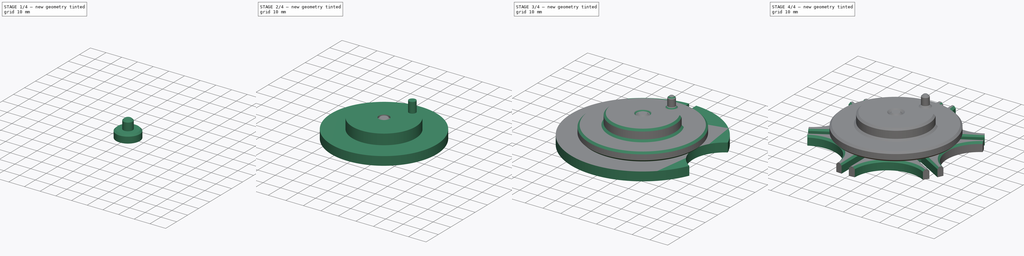
[diagram: build sequence overview — one tinted view per stage of 4, left to right]
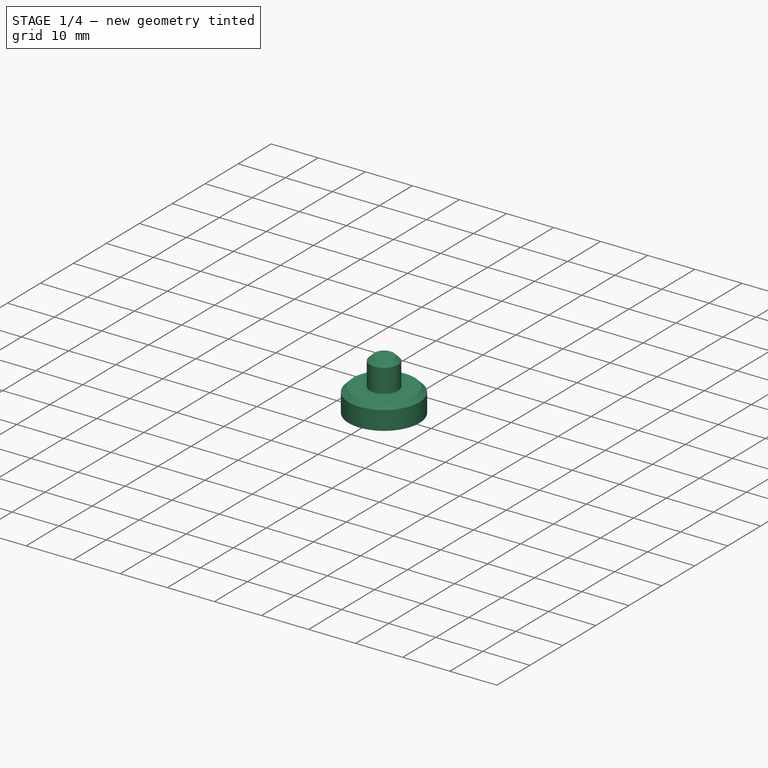
[diagram: stage 1 of 4 — iso view after this stage's code; geometry added in this stage tinted green]
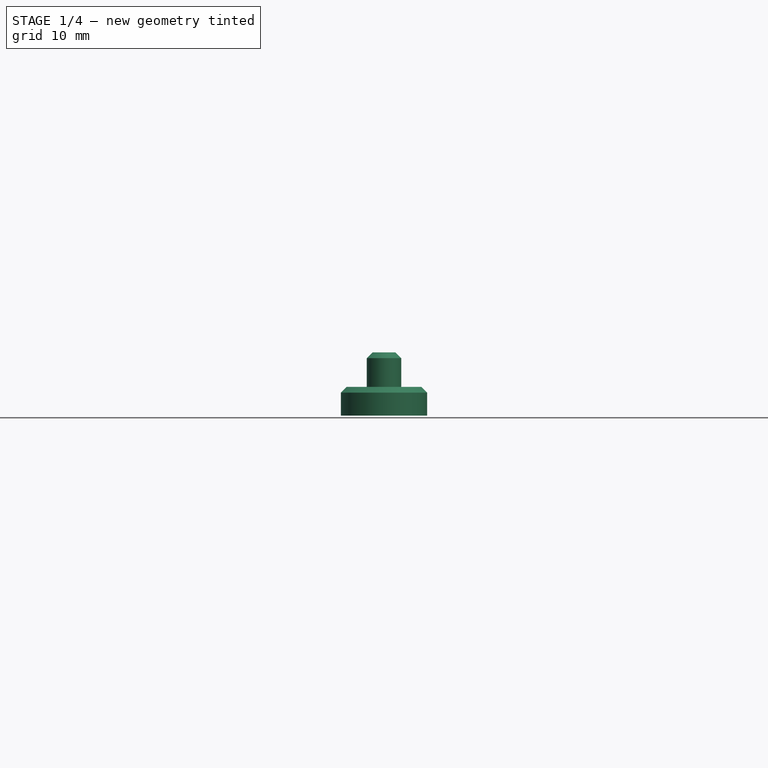
[diagram: stage 1 of 4 — front view after this stage's code; geometry added in this stage tinted green]
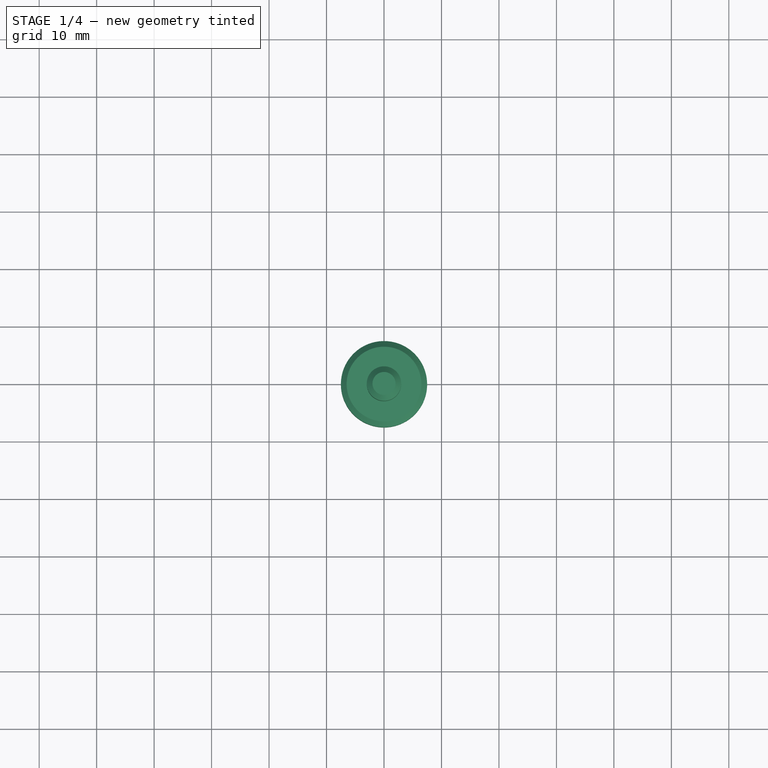
[diagram: stage 1 of 4 — top view after this stage's code; geometry added in this stage tinted green]
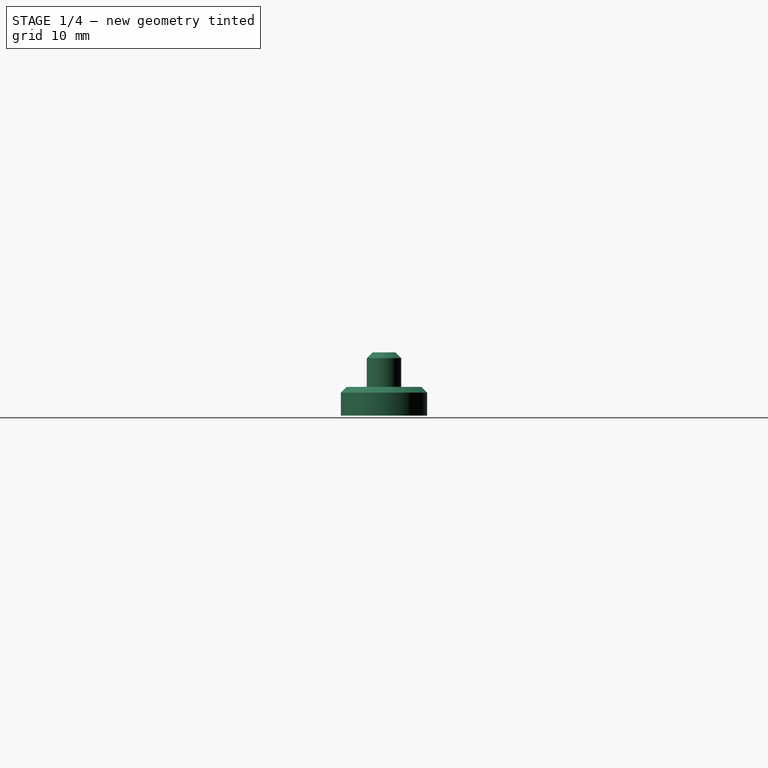
[diagram: stage 1 of 4 — right view after this stage's code; geometry added in this stage tinted green]
FCSTD DOCUMENT  (FreeCAD 0.20R29177 +426 (Git))
Label: project_14
License: All rights reserved
LicenseURL: https://en.wikipedia.org/wiki/All_rights_reserved
objects: Sketcher::SketchObject×9, PartDesign::CoordinateSystem×7, PartDesign::Pad×5, PartDesign::Chamfer×5, PartDesign::Body×4, App::Link×4, PartDesign::Pocket×3, App::DocumentObjectGroup×3, PartDesign::PolarPattern×1, App::FeaturePython×1, App::Part×1
note: 47 computed .brp shape members not serialized (recipe doc carries the construction recipe); baked Part::Feature solids carry a one-line shape summary decoded from their .brp

FEATURE [PartDesign::CoordinateSystem] LCS_Origin
  AttacherType = Attacher::AttachEngine3D
  MapMode = 2
  Support = -> [X_Axis002]
FEATURE [App::DocumentObjectGroup] Constraints
FEATURE [App::FeaturePython] Variables  # WARN: FeaturePython — macro-defined, semantics opaque (R4)
  Type = App::PropertyContainer
  rotator = 120
FEATURE [App::DocumentObjectGroup] Configurations
FEATURE [PartDesign::CoordinateSystem] wheel_1
  AttacherType = Attacher::AttachEngine3D
  AttachmentOffset = pos=(0,0,0) rot=(0,0,1;0.523599rad)
  MapMode = 11
  Placement = pos=(0,0,-5) rot=(0,0,1;3.14159rad)
  Support = -> [Chamfer001]
FEATURE [PartDesign::Body] Body  label="Wheel"
  Group = -> [Sketch,Pad,Sketch001,Pocket,PolarPattern,Sketch002,Pocket001,Chamfer,Chamfer001,wheel_1]
  Origin = -> Origin
  Tip = -> Chamfer001
FEATURE [PartDesign::CoordinateSystem] disk_1
  AttacherType = Attacher::AttachEngine3D
  MapMode = 11
  Placement = pos=(0,0,1) rot=(0,0,1;1.5708rad)
  Support = -> [Chamfer002]
FEATURE [PartDesign::Body] Body001  label="Disk"
  Group = -> [Sketch003,Pad001,Sketch004,Pad002,Sketch005,Pocket002,Chamfer002,disk_1]
  Origin = -> Origin001
  Tip = -> Chamfer002
FEATURE [PartDesign::CoordinateSystem] LCS_Origin001
  AttacherType = Attacher::AttachEngine3D
  MapMode = 2
  Support = -> [X_Axis003]
FEATURE [Sketcher::SketchObject] center_w_s
  FullyConstrained = true
  Support = -> [LCS_Origin001]
  sketch-geometry (1):
    g0: Circle CenterX=0 CenterY=0 CenterZ=0 NormalX=0 NormalY=0 NormalZ=1 AngleXU=0 Radius=7.5
  constraints (2):
    c: Coincident(g0,g-1)
    c: Diameter(g0) = 15
FEATURE [PartDesign::Pad] Pad003
  Direction = (0,0,1)
  Length = 5
  Length2 = 10
  Profile = -> center_w_s
  ReferenceAxis = -> center_w_s [N_Axis]
  Refine = true
  Type = 0
FEATURE [PartDesign::Chamfer] Chamfer003
  Angle = 45
  Base = -> Pad003 [Edge3]
  BaseFeature = -> Pad003
  ChamferType = 0
  FlipDirection = false
  Refine = true
  Size = 1
  Size2 = 1
  SupportTransform = false
  UseAllEdges = false
FEATURE [PartDesign::Body] center_w
  Group = -> [LCS_Origin001,center_w_s,Pad003,Chamfer003]
  Origin = -> Origin003
  Tip = -> Chamfer003
FEATURE [Sketcher::SketchObject] master
  FullyConstrained = true
  Support = -> [LCS_Origin]
  expr: Constraints[5] = Variables.rotator > 240 ? -30 : (Variables.rotator > 120 ? atan(23.094 * sin(180 - Variables.rotator) / (46.188 - 23.094 * cos(180 - Variables.rotator))) : 30)
  expr: Constraints[6] = Variables.rotator
  sketch-geometry (2):
    g0: LineSegment StartX=-46.188 StartY=0 StartZ=0 EndX=-11.547 EndY=20 EndZ=0
    g1: LineSegment StartX=0 StartY=0 StartZ=0 EndX=-11.547 EndY=20 EndZ=0
  constraints (7):
    c: PointOnObject(g0,g-1)
    c: Distance(g0) = 40
    c: DistanceX(g0,g-1) = 46.188
    c: Coincident(g1,g-1)
    c: Distance(g1) = 23.094
    c: Angle(g-1,g0) = 0.523599
    c: Angle(g-1,g1) = 2.0944
FEATURE [PartDesign::CoordinateSystem] wheel_lcs
  AttacherType = Attacher::AttachEngine3D
  MapMode = 7
  Placement = pos=(-46.188,0,0) rot=(0.774597,-0.447214,-0.447214;1.82348rad)
  Support = -> [master]
FEATURE [PartDesign::CoordinateSystem] disk_lcs
  AttacherType = Attacher::AttachEngine3D
  MapMode = 7
  Placement = pos=(0,0,0) rot=(0.935113,0.250563,0.250563;1.63783rad)
  Support = -> [master]
FEATURE [App::Link] Wheel  label="Wheel001"
  AttachedBy = #wheel_1
  AttachedTo = Parent Assembly#wheel_lcs
  AttachmentOffset = pos=(0,0,0) rot=(1,0,0;4.71239rad)
  LinkPlacement = pos=(-46.188,0,5) rot=(0,0,1;2.0944rad)
  LinkedObject = -> Body
  Placement = pos=(-46.188,0,5) rot=(0,0,1;2.0944rad)
  SolverId = Asm4EE
  expr: Placement = wheel_lcs.Placement * AttachmentOffset * wheel_1.Placement ^ -1
FEATURE [App::Link] Disk  label="Disk001"
  AttachedBy = #disk_1
  AttachedTo = Parent Assembly#disk_lcs
  AttachmentOffset = pos=(0,-5,0) rot=(0.57735,-0.57735,-0.57735;4.18879rad)
  LinkPlacement = pos=(3e-16,-8e-16,-6) rot=(0,0,-1;5.75959rad)
  LinkedObject = -> Body001
  Placement = pos=(3e-16,-8e-16,-6) rot=(0,0,-1;5.75959rad)
  SolverId = Asm4EE
  expr: Placement = disk_lcs.Placement * AttachmentOffset * disk_1.Placement ^ -1
FEATURE [App::Link] center_w001
  AttachedBy = #LCS_Origin001
  AttachedTo = Parent Assembly#wheel_lcs
  AttachmentOffset = pos=(0,0,0) rot=(1,0,0;4.71239rad)
  LinkPlacement = pos=(-46.188,0,0) rot=(0,0,1;5.23599rad)
  LinkedObject = -> center_w
  Placement = pos=(-46.188,0,0) rot=(0,0,1;5.23599rad)
  SolverId = Asm4EE
  expr: Placement = wheel_lcs.Placement * AttachmentOffset * LCS_Origin001.Placement ^ -1
FEATURE [PartDesign::CoordinateSystem] LCS_Origin002
  AttacherType = Attacher::AttachEngine3D
  MapMode = 2
  Support = -> [X_Axis004]
FEATURE [Sketcher::SketchObject] center_d_sketch
  FullyConstrained = true
  MapMode = 5
  Support = -> [LCS_Origin002]
  sketch-geometry (1):
    g0: Circle CenterX=0 CenterY=0 CenterZ=0 NormalX=0 NormalY=0 NormalZ=1 AngleXU=0 Radius=3
  constraints (2):
    c: Coincident(g0,g-1)
    c: Diameter(g0) = 6
FEATURE [PartDesign::Pad] Pad004
  Direction = (0,0,1)
  Length = 11
  Length2 = 10
  Profile = -> center_d_sketch
  ReferenceAxis = -> center_d_sketch [N_Axis]
  Refine = true
  Type = 0
FEATURE [PartDesign::Chamfer] Chamfer004
  Angle = 45
  Base = -> Pad004 [Edge3]
  BaseFeature = -> Pad004
  ChamferType = 0
  FlipDirection = false
  Refine = true
  Size = 1
  Size2 = 1
  SupportTransform = false
  UseAllEdges = false
FEATURE [PartDesign::Body] center_d
  Group = -> [LCS_Origin002,center_d_sketch,Pad004,Chamfer004]
  Origin = -> Origin004
  Tip = -> Chamfer004
FEATURE [App::DocumentObjectGroup] Parts
  Group = -> [Body,Body001,center_w,center_d]
FEATURE [App::Link] center_d001
  AttachedBy = #LCS_Origin002
  AttachedTo = Parent Assembly#disk_lcs
  AttachmentOffset = pos=(0,-6,0) rot=(1,0,0;4.71239rad)
  LinkPlacement = pos=(2e-16,-7e-16,-6) rot=(0,0,-1;5.75959rad)
  LinkedObject = -> center_d
  Placement = pos=(2e-16,-7e-16,-6) rot=(0,0,-1;5.75959rad)
  SolverId = Asm4EE
  expr: Placement = disk_lcs.Placement * AttachmentOffset * LCS_Origin002.Placement ^ -1
FEATURE [App::Part] Assembly
  AssemblyType = Part::Link
  Group = -> [LCS_Origin,Constraints,Variables,Configurations,master,wheel_lcs,disk_lcs,Wheel,Disk,center_w001,center_d001]
  Origin = -> Origin002
  Type = Assembly
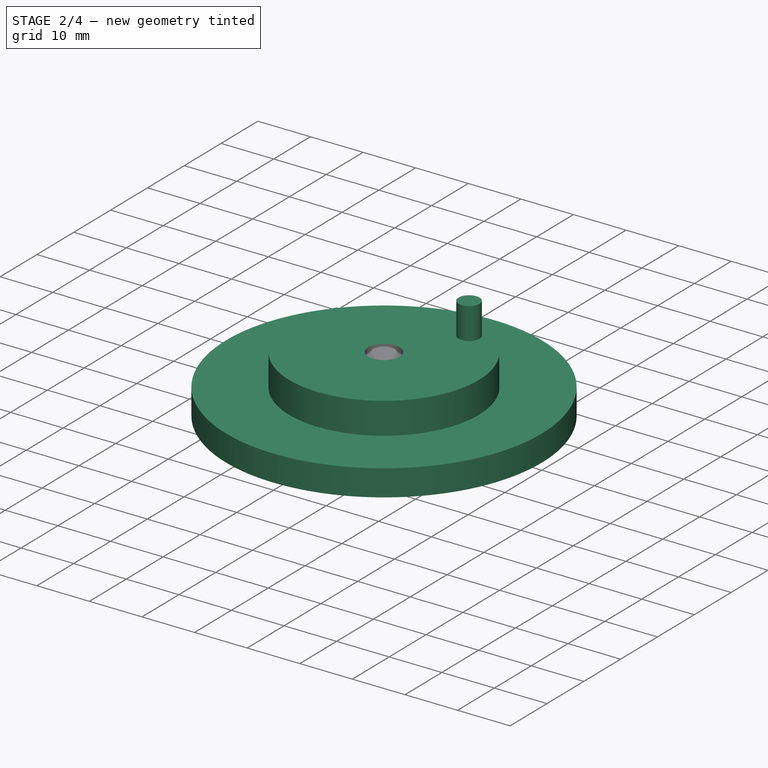
[diagram: stage 2 of 4 — iso view after this stage's code; geometry added in this stage tinted green]
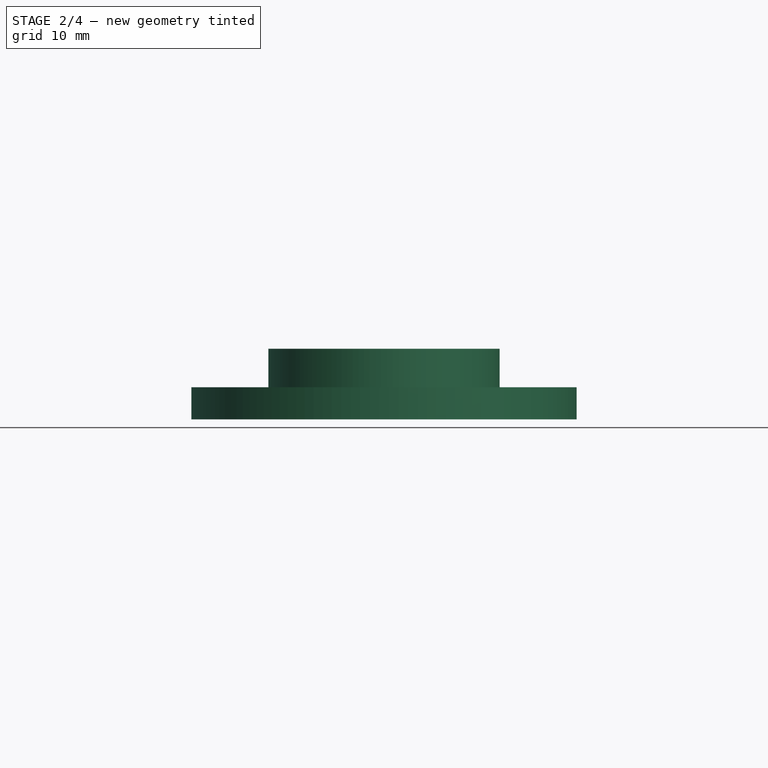
[diagram: stage 2 of 4 — front view after this stage's code; geometry added in this stage tinted green]
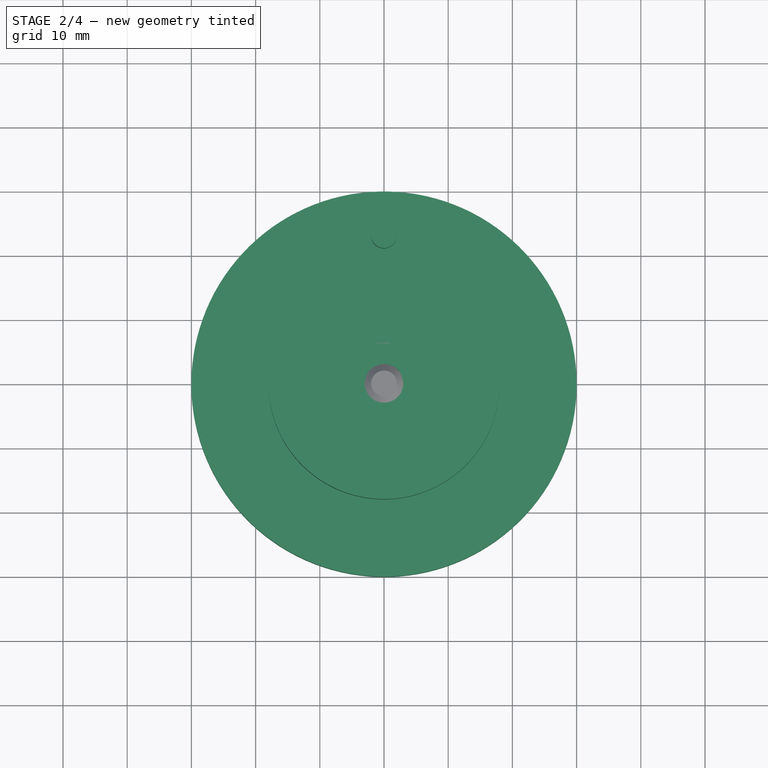
[diagram: stage 2 of 4 — top view after this stage's code; geometry added in this stage tinted green]
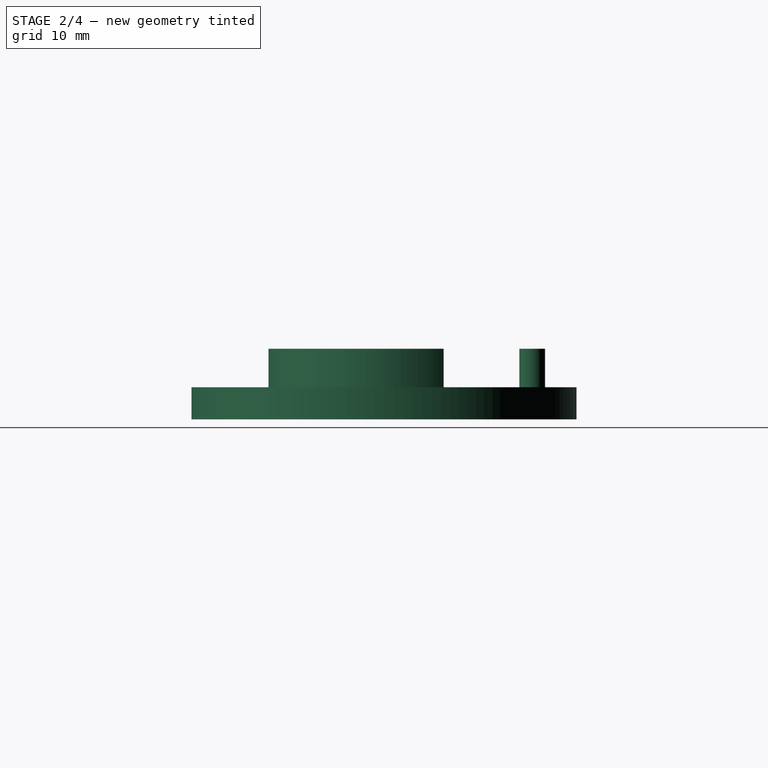
[diagram: stage 2 of 4 — right view after this stage's code; geometry added in this stage tinted green]
FEATURE [Sketcher::SketchObject] Sketch003
  FullyConstrained = true
  MapMode = 5
  Support = -> [XY_Plane001]
  sketch-geometry (1):
    g0: Circle CenterX=0 CenterY=0 CenterZ=0 NormalX=0 NormalY=0 NormalZ=1 AngleXU=0 Radius=30
  constraints (2):
    c: Coincident(g0,g-1)
    c: Diameter(g0) = 60
FEATURE [PartDesign::Pad] Pad001
  Direction = (0,0,1)
  Length = 5
  Length2 = 10
  Profile = -> Sketch003
  ReferenceAxis = -> Sketch003 [N_Axis]
  Refine = true
  Type = 0
FEATURE [Sketcher::SketchObject] Sketch004
  FullyConstrained = true
  MapMode = 5
  Placement = pos=(0,0,5) rot=(0,0,1;0rad)
  Support = -> [Pad001]
  sketch-geometry (3):
    g0: Circle CenterX=0 CenterY=23.0943 CenterZ=0 NormalX=0 NormalY=0 NormalZ=1 AngleXU=0 Radius=2
    g1: ArcOfCircle CenterX=0 CenterY=0 CenterZ=0 NormalX=0 NormalY=0 NormalZ=1 AngleXU=0 Radius=18 StartAngle=2.59988 EndAngle=6.8249
    g2: ArcOfCircle CenterX=0 CenterY=46.188 CenterZ=0 NormalX=0 NormalY=0 NormalZ=1 AngleXU=0 Radius=40 StartAngle=4.31656 EndAngle=5.10822
  constraints (10):
    c: PointOnObject(g0,g-2)
    c: Diameter(g0) = 4
    c: DistanceY(g-1,g0) = 23.0943
    c: Coincident(g1,g-1)
    c: Diameter(g1) = 36
    c: PointOnObject(g2,g-2)
    c: Diameter(g2) = 80
    c: DistanceY(g1,g2) = 46.188
    c: Coincident(g1,g2)
    c: Coincident(g1,g2)
FEATURE [PartDesign::Pad] Pad002
  BaseFeature = -> Pad001
  Direction = (0,0,1)
  Length = 6
  Length2 = 10
  Profile = -> Sketch004
  ReferenceAxis = -> Sketch004 [N_Axis]
  Refine = true
  Type = 0
FEATURE [Sketcher::SketchObject] Sketch005
  FullyConstrained = true
  MapMode = 5
  Placement = pos=(0,0,5) rot=(0,0,1;0rad)
  Support = -> [Pad002]
  sketch-geometry (1):
    g0: Circle CenterX=0 CenterY=0 CenterZ=0 NormalX=0 NormalY=0 NormalZ=1 AngleXU=0 Radius=3
  constraints (2):
    c: Coincident(g0,g-1)
    c: Diameter(g0) = 6
FEATURE [PartDesign::Pocket] Pocket002
  BaseFeature = -> Pad002
  Direction = (0,0,-1)
  Length = 5
  Length2 = 5
  Midplane = true
  Profile = -> Sketch005
  ReferenceAxis = -> Sketch005 [N_Axis]
  Refine = true
  Type = 1
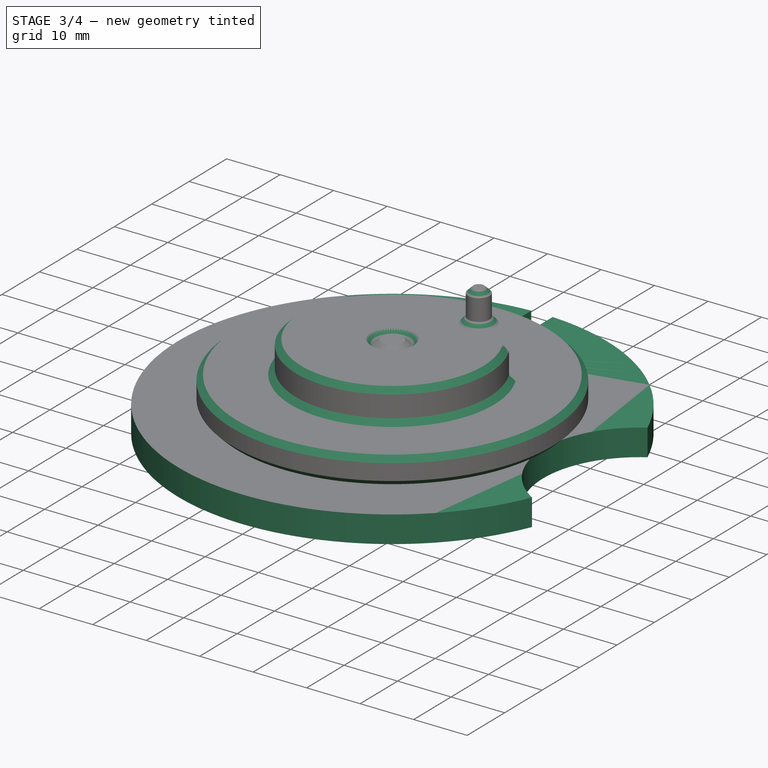
[diagram: stage 3 of 4 — iso view after this stage's code; geometry added in this stage tinted green]
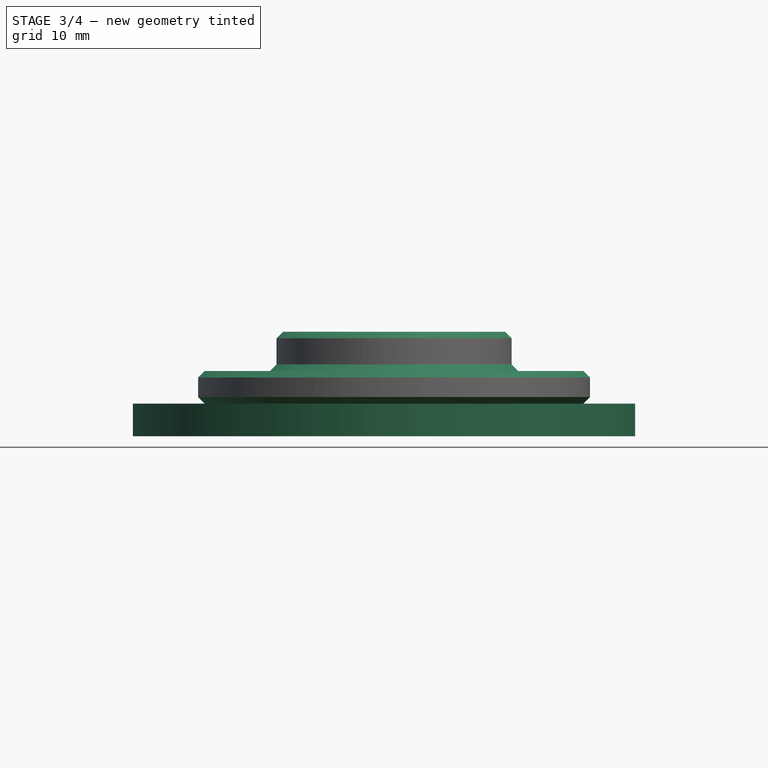
[diagram: stage 3 of 4 — front view after this stage's code; geometry added in this stage tinted green]
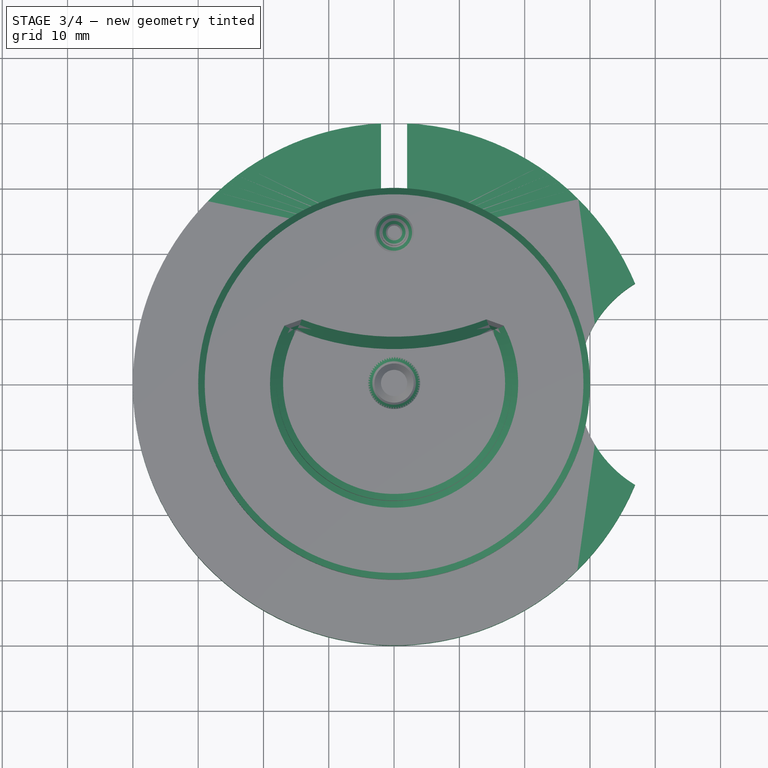
[diagram: stage 3 of 4 — top view after this stage's code; geometry added in this stage tinted green]
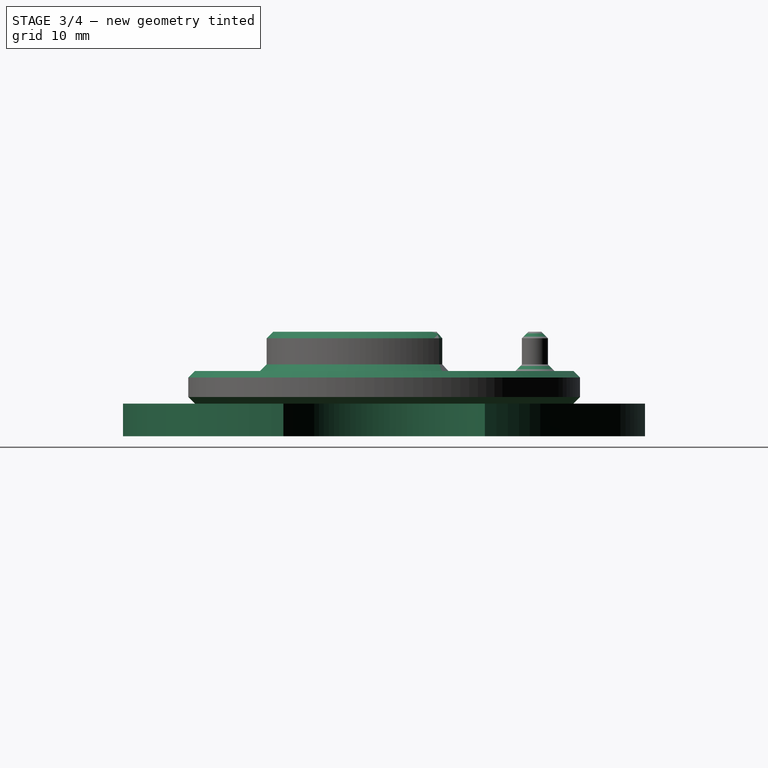
[diagram: stage 3 of 4 — right view after this stage's code; geometry added in this stage tinted green]
FEATURE [Sketcher::SketchObject] Sketch
  FullyConstrained = false
  MapMode = 5
  Support = -> [XY_Plane]
  sketch-geometry (5):
    g0: Circle CenterX=0 CenterY=0 CenterZ=0 NormalX=0 NormalY=0 NormalZ=1 AngleXU=0 Radius=40
    g1: LineSegment StartX=0 StartY=0 StartZ=0 EndX=69.0217 EndY=39.8497 EndZ=0
    g2: LineSegment StartX=34.641 StartY=20 StartZ=0 EndX=46.188 EndY=0 EndZ=0
    g3: Circle CenterX=46.188 CenterY=0 CenterZ=0 NormalX=0 NormalY=0 NormalZ=1 AngleXU=0 Radius=18
    g4: Circle CenterX=46.188 CenterY=0 CenterZ=0 NormalX=0 NormalY=0 NormalZ=1 AngleXU=0 Radius=23.094
  constraints (14):
    c: Coincident(g0,g-1)
    c: Radius(g0) = 40
    c: Coincident(g1,g0)
    c: Angle(g-1,g1) = 0.523599
    c: PointOnObject(g2,g1)
    c: Tangent(g2,g0)
    c: Distance(g2) = 23.094
    c: PointOnObject(g2,g-1)
    c: Perpendicular(g1,g2)
    c: DistanceX(g0,g2) = 46.188
    c: Coincident(g3,g2)
    c: Radius(g3) = 18
    c: Coincident(g4,g2)
    c: PointOnObject(g2,g4)
FEATURE [PartDesign::Pad] Pad
  Direction = (0,0,1)
  Length = 5
  Length2 = 10
  Profile = -> Sketch
  ReferenceAxis = -> Sketch [N_Axis]
  Refine = true
  Reversed = true
  Type = 0
FEATURE [Sketcher::SketchObject] Sketch001
  FullyConstrained = true
  MapMode = 5
  Support = -> [XY_Plane]
  sketch-geometry (6):
    g0: Circle CenterX=0 CenterY=0 CenterZ=0 NormalX=0 NormalY=0 NormalZ=1 AngleXU=0 Radius=7.5
    g1: ArcOfCircle CenterX=0 CenterY=23.09 CenterZ=0 NormalX=0 NormalY=0 NormalZ=1 AngleXU=0 Radius=2 StartAngle=3.14159 EndAngle=6.28319
    g2: ArcOfCircle CenterX=0 CenterY=43.09 CenterZ=0 NormalX=0 NormalY=0 NormalZ=1 AngleXU=0 Radius=2 StartAngle=-1.8e-15 EndAngle=3.14159
    g3: LineSegment StartX=2 StartY=23.09 StartZ=0 EndX=2 EndY=43.09 EndZ=0
    g4: LineSegment StartX=-2 StartY=43.09 StartZ=0 EndX=-2 EndY=23.09 EndZ=0
    g5: Circle CenterX=46.188 CenterY=0 CenterZ=0 NormalX=0 NormalY=0 NormalZ=1 AngleXU=0 Radius=18
  constraints (15):
    c: Radius(g0) = 7.5
    c: Tangent(g1,g3) = -1.5708
    c: Tangent(g3,g2) = -1.5708
    c: Tangent(g2,g4) = -1.5708
    c: Tangent(g4,g1) = -1.5708
    c: Equal(g1,g2)
    c: PointOnObject(g1,g-2)
    c: PointOnObject(g2,g-2)
    c: Diameter(g1) = 4
    c: Coincident(g0,g-1)
    c: DistanceY(g0,g1) = 23.09
    c: DistanceY(g3,g3) = 20
    c: PointOnObject(g5,g-1)
    c: Diameter(g5) = 36
    c: DistanceX(g0,g5) = 46.188
FEATURE [PartDesign::Pocket] Pocket
  BaseFeature = -> Pad
  Direction = (0,0,-1)
  Length = 5
  Length2 = 5
  Profile = -> Sketch001
  ReferenceAxis = -> Sketch001 [N_Axis]
  Refine = true
  Type = 0
FEATURE [PartDesign::Chamfer] Chamfer002
  Angle = 45
  Base = -> Pocket002 [Edge10]
  BaseFeature = -> Pocket002
  ChamferType = 0
  FlipDirection = false
  Refine = true
  Size = 1
  Size2 = 1
  SupportTransform = false
  UseAllEdges = true
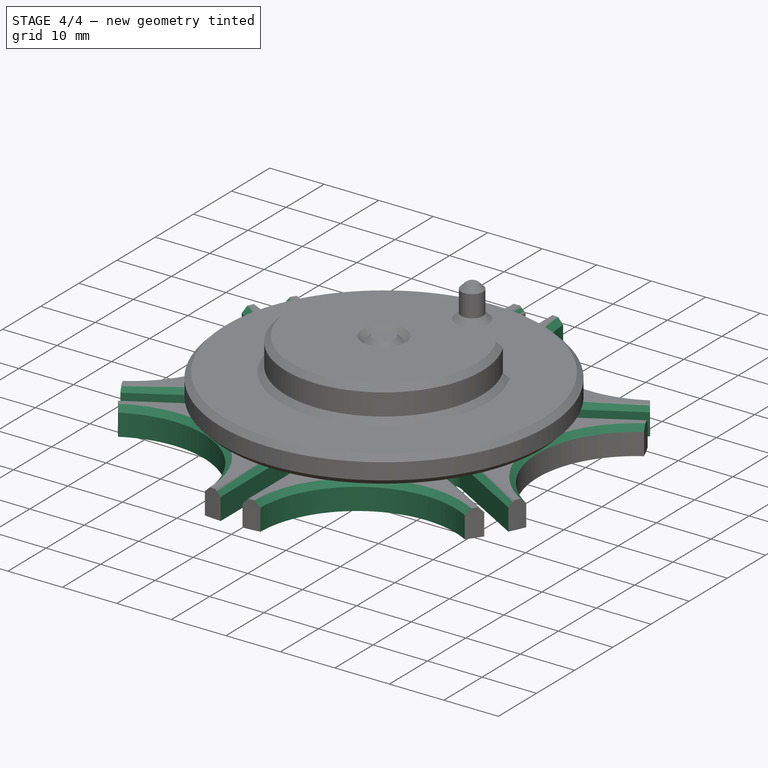
[diagram: stage 4 of 4 — iso view after this stage's code; geometry added in this stage tinted green]
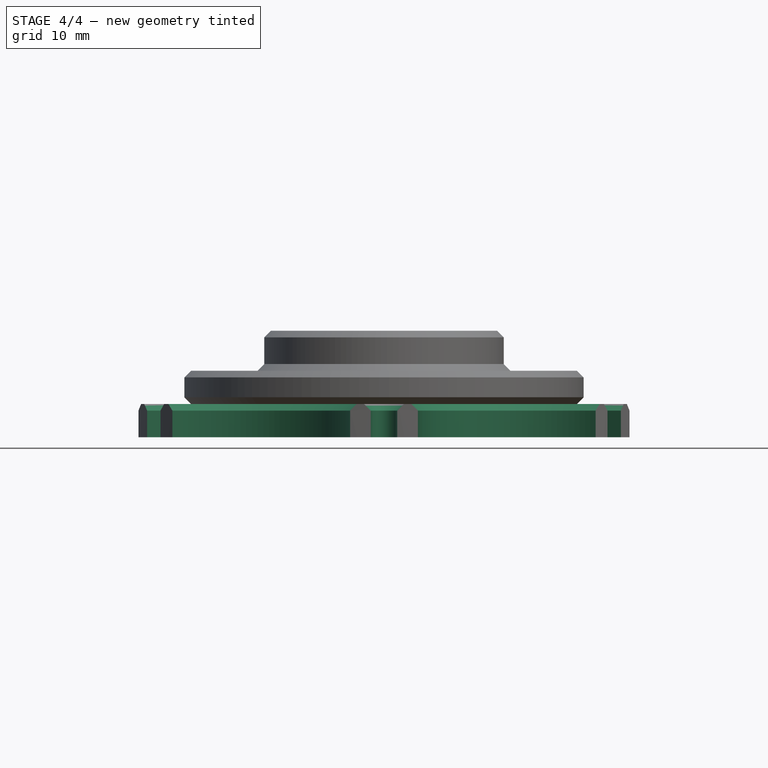
[diagram: stage 4 of 4 — front view after this stage's code; geometry added in this stage tinted green]
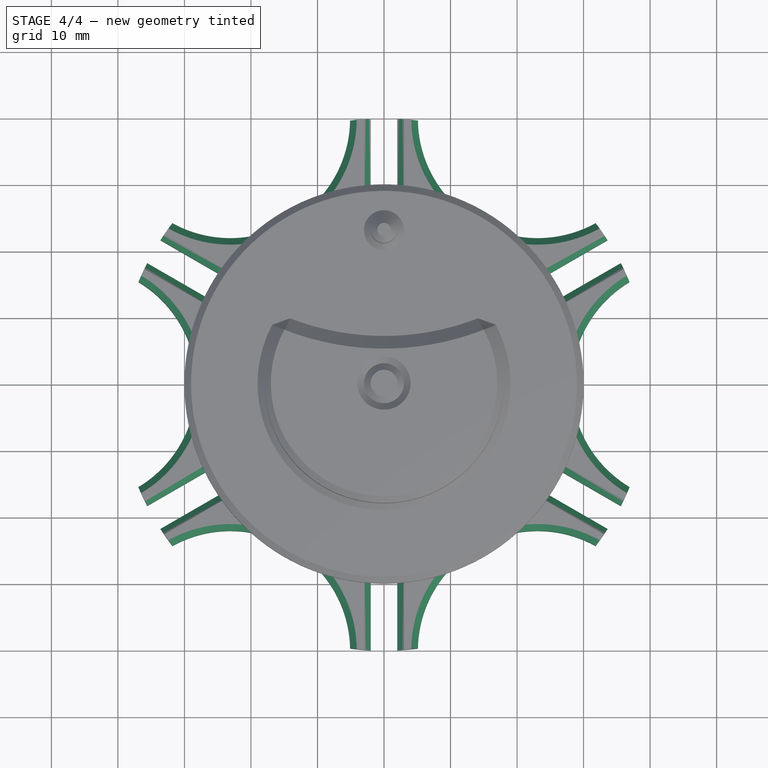
[diagram: stage 4 of 4 — top view after this stage's code; geometry added in this stage tinted green]
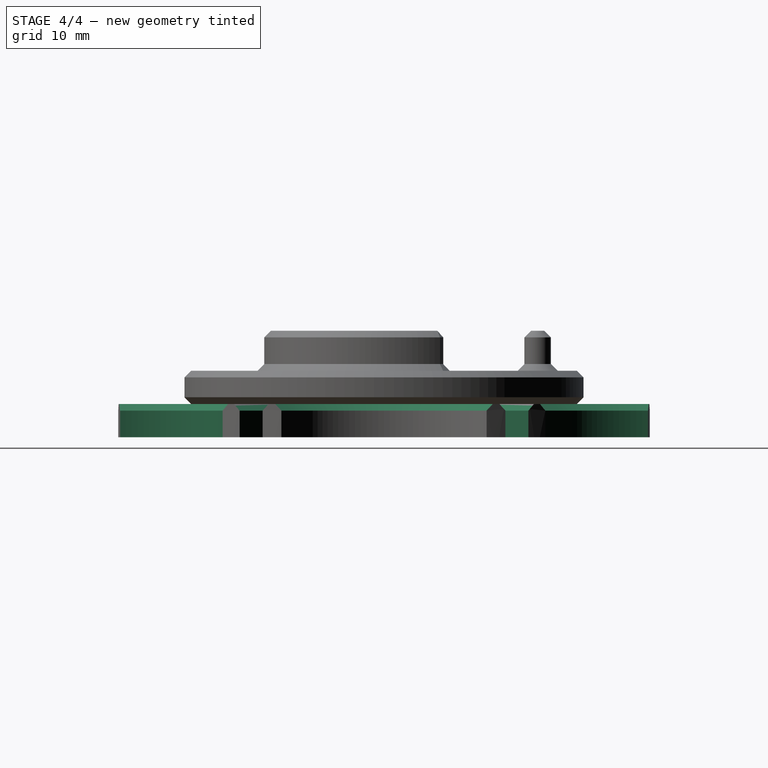
[diagram: stage 4 of 4 — right view after this stage's code; geometry added in this stage tinted green]
FEATURE [PartDesign::PolarPattern] PolarPattern
  Angle = 360
  Axis = -> Sketch001 [N_Axis]
  BaseFeature = -> Pocket
  Occurrences = 6
  Originals = -> [Pocket]
  Refine = true
FEATURE [Sketcher::SketchObject] Sketch002
  FullyConstrained = true
  MapMode = 5
  Support = -> [XY_Plane]
  sketch-geometry (2):
    g0: Circle CenterX=0 CenterY=0 CenterZ=0 NormalX=0 NormalY=0 NormalZ=1 AngleXU=0 Radius=12.5
    g1: Circle CenterX=0 CenterY=0 CenterZ=0 NormalX=0 NormalY=0 NormalZ=1 AngleXU=0 Radius=16
  constraints (4):
    c: Coincident(g0,g-1)
    c: Coincident(g1,g0)
    c: Diameter(g0) = 25
    c: Diameter(g1) = 32
FEATURE [PartDesign::Pocket] Pocket001
  BaseFeature = -> PolarPattern
  Direction = (0,0,-1)
  Length = 2
  Length2 = 5
  Profile = -> Sketch002
  ReferenceAxis = -> Sketch002 [N_Axis]
  Refine = true
  Type = 0
FEATURE [PartDesign::Chamfer] Chamfer
  Angle = 45
  Base = -> Pocket001 [Edge40,Edge126]
  BaseFeature = -> Pocket001
  ChamferType = 0
  FlipDirection = false
  Refine = true
  Size = 1
  Size2 = 1
  SupportTransform = false
  UseAllEdges = false
FEATURE [PartDesign::Chamfer] Chamfer001
  Angle = 45
  Base = -> Chamfer [Edge37,Edge34,Edge32,Edge30,Edge26,Edge22,Edge20,Edge18,Edge14,Edge10,Edge8,Edge6,Edge2,Edge5,Edge7,Edge9,Edge13,Edge17,Edge19,Edge21,Edge25,Edge29,Edge31,Edge33]
  BaseFeature = -> Chamfer
  ChamferType = 0
  FlipDirection = false
  Refine = true
  Size = 1
  Size2 = 1
  SupportTransform = false
  UseAllEdges = false
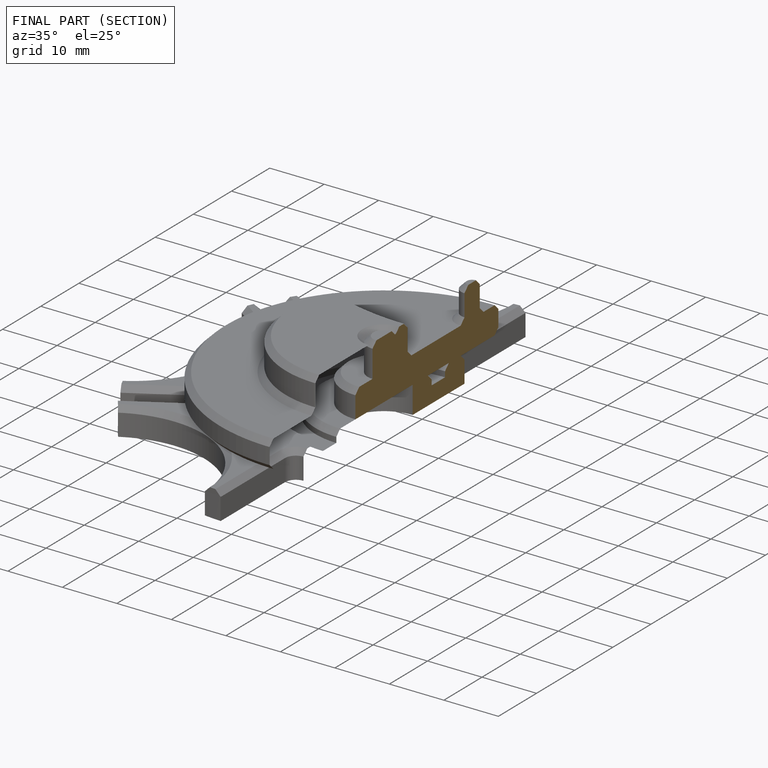
[diagram: finished part — half-section view (interior)]
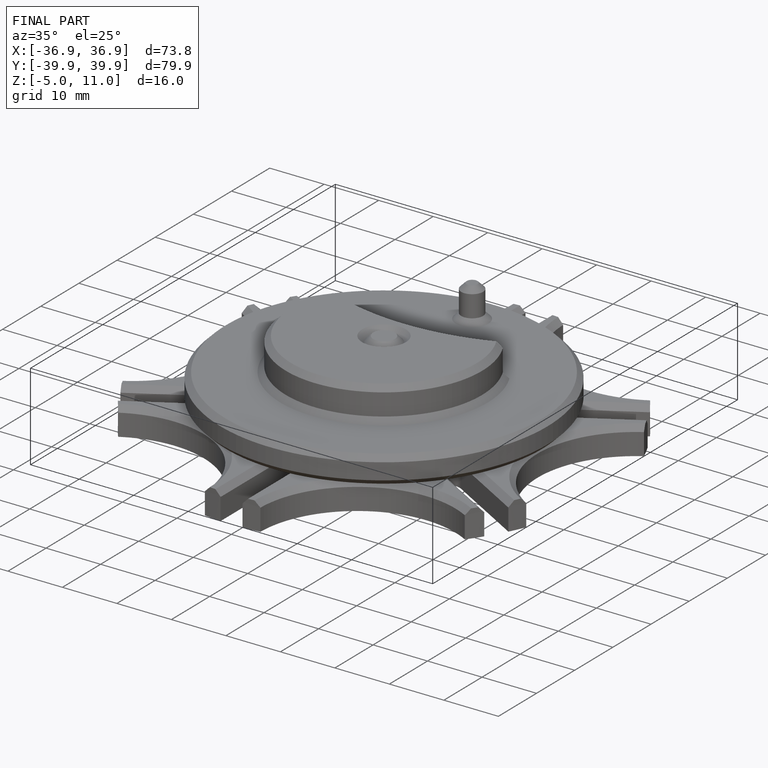
[diagram: finished part — iso view with bounding-box wireframe]
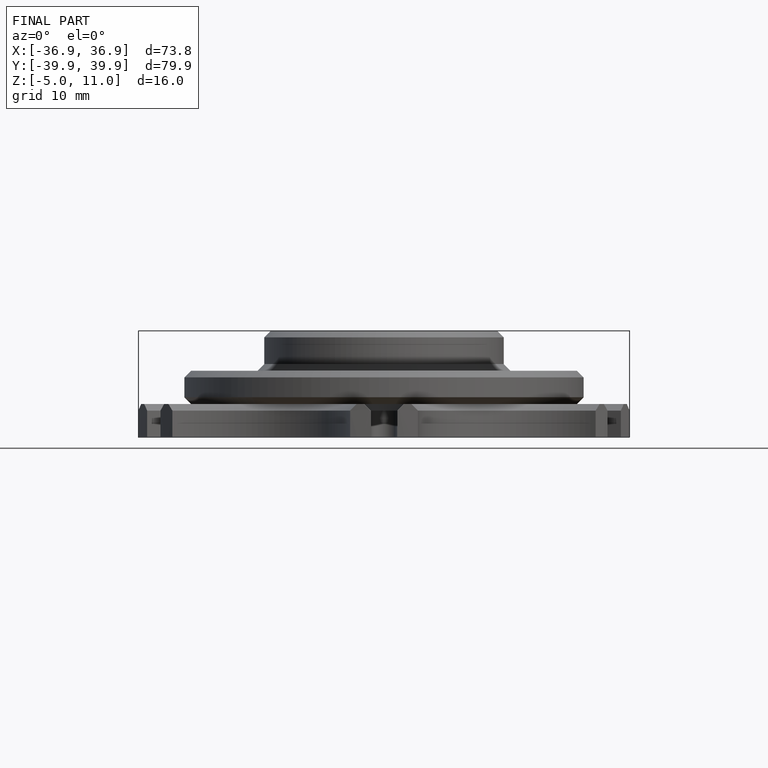
[diagram: finished part — front view with bounding-box wireframe]
